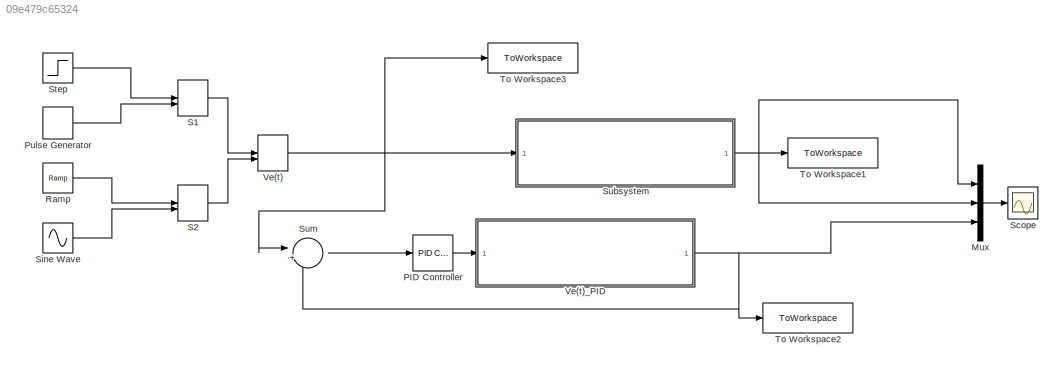
MODEL slx_09e479c65324
KIND model
CONFIG AbsTol = auto
CONFIG EnableMultiTasking = off
CONFIG FixedStep = auto
CONFIG MaxStep = auto
CONFIG MinStep = auto
CONFIG RelTol = 1e-3
CONFIG SampleTimeConstraint = Unconstrained
CONFIG SolverName = VariableStepAuto
CONFIG StartTime = 0.0
CONFIG StopTime = 10.0
BLOCK [Mux] Mux
  DisplayOption = bar
  Inputs = 3
BLOCK [Reference] PID Controller  REF=slpidlib/PID Controller
  LibrarySourceBlock = simulink/Continuous/PID Controller
  SourceBlock = slpidlib/PID Controller
  SourceType = PID 1dof
BLOCK [DiscretePulseGenerator] Pulse Generator
  Period = 10
  PhaseDelay = 1
  PulseType = Time based
  PulseWidth = 10
BLOCK [Reference] Ramp  REF=simulink/Sources/Ramp
  SourceBlock = simulink/Sources/Ramp
  SourceType = Ramp
BLOCK [ManualSwitch] S1
BLOCK [ManualSwitch] S2
  CurrentSetting = 0
BLOCK [Scope] Scope
  Floating = off
  NumInputPorts = 1
  ScopeSpecificationString = Simulink.scopes.TimeScopeBlockCfg('CurrentConfiguration', extmgr.ConfigurationSet(extmgr.Configuration('Core','General UI',true),extmgr.Configuration('Core','Source UI',true),extmgr.Configuration('Sources','WiredSimulink',true),extmgr.Configuration('Visuals','Time Domain',true,'SerializedDisplays',{struct('MinYLimReal','-1.25137','MaxYLimReal','1.25137','YLabelReal','','MinYLimMag','0.00000','MaxY...<+1420ch>
BLOCK [Sin] Sine Wave
  Frequency = 1.5078
  SampleTime = 0
BLOCK [Step] Step
  SampleTime = 0.001
  Time = 0
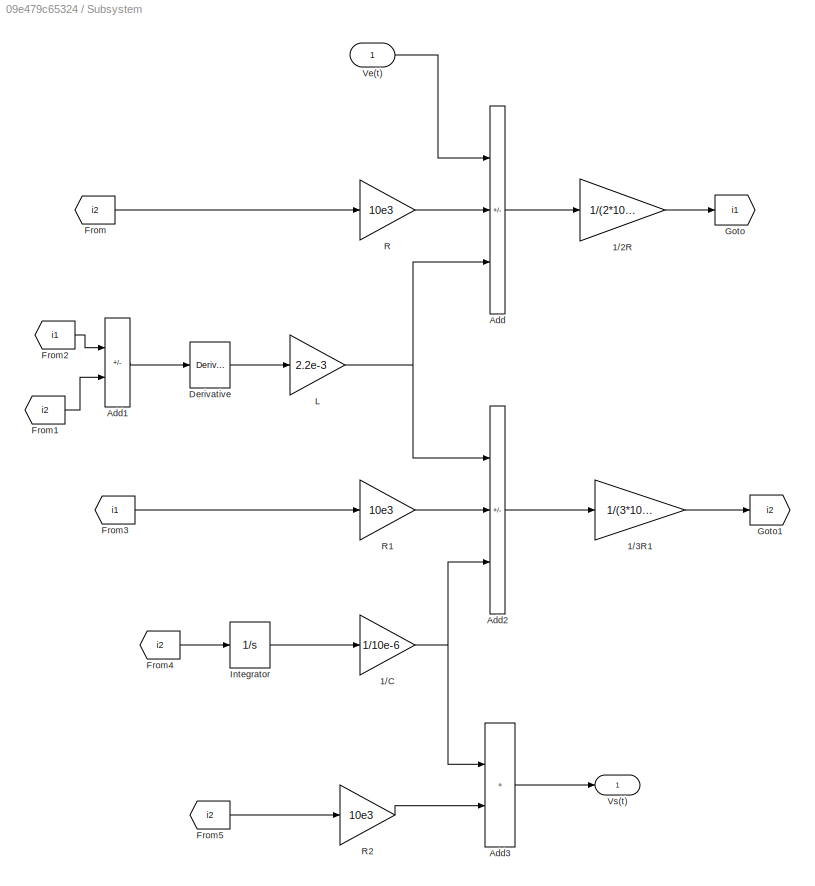
BLOCK [SubSystem] Subsystem
BLOCK [Gain] Subsystem/1//2R
  Gain = 1/(2*10E3)
BLOCK [Gain] Subsystem/1//3R1
  Gain = 1/(3*10E3)
BLOCK [Gain] Subsystem/1//C
  Gain = 1/10e-6
BLOCK [Sum] Subsystem/Add
  IconShape = rectangular
  Inputs = ++-
BLOCK [Sum] Subsystem/Add1
  IconShape = rectangular
  Inputs = +-
BLOCK [Sum] Subsystem/Add2
  IconShape = rectangular
  Inputs = ++-
BLOCK [Sum] Subsystem/Add3
  IconShape = rectangular
BLOCK [Derivative] Subsystem/Derivative
BLOCK [From] Subsystem/From
  GotoTag = i2
BLOCK [From] Subsystem/From1
  GotoTag = i2
BLOCK [From] Subsystem/From2
  GotoTag = i1
BLOCK [From] Subsystem/From3
  GotoTag = i1
BLOCK [From] Subsystem/From4
  GotoTag = i2
BLOCK [From] Subsystem/From5
  GotoTag = i2
BLOCK [Goto] Subsystem/Goto
  GotoTag = i1
BLOCK [Goto] Subsystem/Goto1
  GotoTag = i2
BLOCK [Integrator] Subsystem/Integrator
BLOCK [Gain] Subsystem/L
  Gain = 2.2e-3
BLOCK [Gain] Subsystem/R
  Gain = 10e3
BLOCK [Gain] Subsystem/R1
  Gain = 10e3
BLOCK [Gain] Subsystem/R2
  Gain = 10e3
BLOCK [Inport] Subsystem/Ve(t)
BLOCK [Outport] Subsystem/Vs(t)
BLOCK [Sum] Sum
  Inputs = |+-
BLOCK [ToWorkspace] To Workspace1
  FixptAsFi = on
  MaxDataPoints = inf
  SampleTime = -1
  VariableName = Vs
BLOCK [ToWorkspace] To Workspace2
  FixptAsFi = on
  MaxDataPoints = inf
  SampleTime = -1
  VariableName = VPID
BLOCK [ToWorkspace] To Workspace3
  FixptAsFi = on
  MaxDataPoints = inf
  SampleTime = -1
  VariableName = Ve
BLOCK [ManualSwitch] Ve(t)
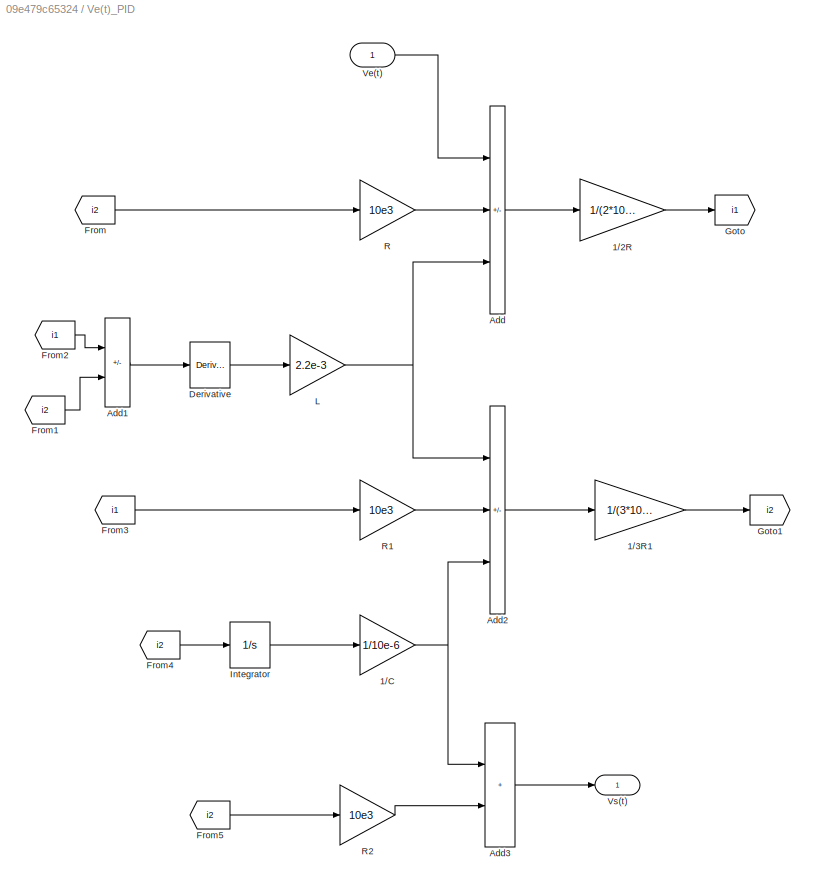
BLOCK [SubSystem] Ve(t)_PID
BLOCK [Gain] Ve(t)_PID/1//2R
  Gain = 1/(2*10E3)
BLOCK [Gain] Ve(t)_PID/1//3R1
  Gain = 1/(3*10E3)
BLOCK [Gain] Ve(t)_PID/1//C
  Gain = 1/10e-6
BLOCK [Sum] Ve(t)_PID/Add
  IconShape = rectangular
  Inputs = ++-
BLOCK [Sum] Ve(t)_PID/Add1
  IconShape = rectangular
  Inputs = +-
BLOCK [Sum] Ve(t)_PID/Add2
  IconShape = rectangular
  Inputs = ++-
BLOCK [Sum] Ve(t)_PID/Add3
  IconShape = rectangular
BLOCK [Derivative] Ve(t)_PID/Derivative
BLOCK [From] Ve(t)_PID/From
  GotoTag = i2
BLOCK [From] Ve(t)_PID/From1
  GotoTag = i2
BLOCK [From] Ve(t)_PID/From2
  GotoTag = i1
BLOCK [From] Ve(t)_PID/From3
  GotoTag = i1
BLOCK [From] Ve(t)_PID/From4
  GotoTag = i2
BLOCK [From] Ve(t)_PID/From5
  GotoTag = i2
BLOCK [Goto] Ve(t)_PID/Goto
  GotoTag = i1
BLOCK [Goto] Ve(t)_PID/Goto1
  GotoTag = i2
BLOCK [Integrator] Ve(t)_PID/Integrator
BLOCK [Gain] Ve(t)_PID/L
  Gain = 2.2e-3
BLOCK [Gain] Ve(t)_PID/R
  Gain = 10e3
BLOCK [Gain] Ve(t)_PID/R1
  Gain = 10e3
BLOCK [Gain] Ve(t)_PID/R2
  Gain = 10e3
BLOCK [Inport] Ve(t)_PID/Ve(t)
BLOCK [Outport] Ve(t)_PID/Vs(t)
LINE Mux:1 -> Scope:1
LINE PID Controller:1 -> Ve(t)_PID:1
LINE Pulse Generator:1 -> S1:2
LINE Ramp:1 -> S2:1
LINE S1:1 -> Ve(t):1
LINE S2:1 -> Ve(t):2
LINE Sine Wave:1 -> S2:2
LINE Step:1 -> S1:1
LINE Subsystem/1//2R:1 -> Subsystem/Goto:1
LINE Subsystem/1//3R1:1 -> Subsystem/Goto1:1
NET Subsystem/1//C:1 -> Subsystem/Add2:3, Subsystem/Add3:1
LINE Subsystem/Add1:1 -> Subsystem/Derivative:1
LINE Subsystem/Add2:1 -> Subsystem/1//3R1:1
LINE Subsystem/Add3:1 -> Subsystem/Vs(t):1
LINE Subsystem/Add:1 -> Subsystem/1//2R:1
LINE Subsystem/Derivative:1 -> Subsystem/L:1
LINE Subsystem/From1:1 -> Subsystem/Add1:2
LINE Subsystem/From2:1 -> Subsystem/Add1:1
LINE Subsystem/From3:1 -> Subsystem/R1:1
LINE Subsystem/From4:1 -> Subsystem/Integrator:1
LINE Subsystem/From5:1 -> Subsystem/R2:1
LINE Subsystem/From:1 -> Subsystem/R:1
LINE Subsystem/Integrator:1 -> Subsystem/1//C:1
NET Subsystem/L:1 -> Subsystem/Add2:1, Subsystem/Add:3
LINE Subsystem/R1:1 -> Subsystem/Add2:2
LINE Subsystem/R2:1 -> Subsystem/Add3:2
LINE Subsystem/R:1 -> Subsystem/Add:2
LINE Subsystem/Ve(t):1 -> Subsystem/Add:1
NET Subsystem:1 -> Mux:1, Mux:2, To Workspace1:1
LINE Sum:1 -> PID Controller:1
NET Ve(t):1 -> Subsystem:1, Sum:1, To Workspace3:1
LINE Ve(t)_PID/1//2R:1 -> Ve(t)_PID/Goto:1
LINE Ve(t)_PID/1//3R1:1 -> Ve(t)_PID/Goto1:1
NET Ve(t)_PID/1//C:1 -> Ve(t)_PID/Add2:3, Ve(t)_PID/Add3:1
LINE Ve(t)_PID/Add1:1 -> Ve(t)_PID/Derivative:1
LINE Ve(t)_PID/Add2:1 -> Ve(t)_PID/1//3R1:1
LINE Ve(t)_PID/Add3:1 -> Ve(t)_PID/Vs(t):1
LINE Ve(t)_PID/Add:1 -> Ve(t)_PID/1//2R:1
LINE Ve(t)_PID/Derivative:1 -> Ve(t)_PID/L:1
LINE Ve(t)_PID/From1:1 -> Ve(t)_PID/Add1:2
LINE Ve(t)_PID/From2:1 -> Ve(t)_PID/Add1:1
LINE Ve(t)_PID/From3:1 -> Ve(t)_PID/R1:1
LINE Ve(t)_PID/From4:1 -> Ve(t)_PID/Integrator:1
LINE Ve(t)_PID/From5:1 -> Ve(t)_PID/R2:1
LINE Ve(t)_PID/From:1 -> Ve(t)_PID/R:1
LINE Ve(t)_PID/Integrator:1 -> Ve(t)_PID/1//C:1
NET Ve(t)_PID/L:1 -> Ve(t)_PID/Add2:1, Ve(t)_PID/Add:3
LINE Ve(t)_PID/R1:1 -> Ve(t)_PID/Add2:2
LINE Ve(t)_PID/R2:1 -> Ve(t)_PID/Add3:2
LINE Ve(t)_PID/R:1 -> Ve(t)_PID/Add:2
LINE Ve(t)_PID/Ve(t):1 -> Ve(t)_PID/Add:1
NET Ve(t)_PID:1 -> Mux:3, Sum:2, To Workspace2:1
note: NET lines group one-source signal fan-out (src -> all destinations, sorted); 1:1 wires keep LINE
